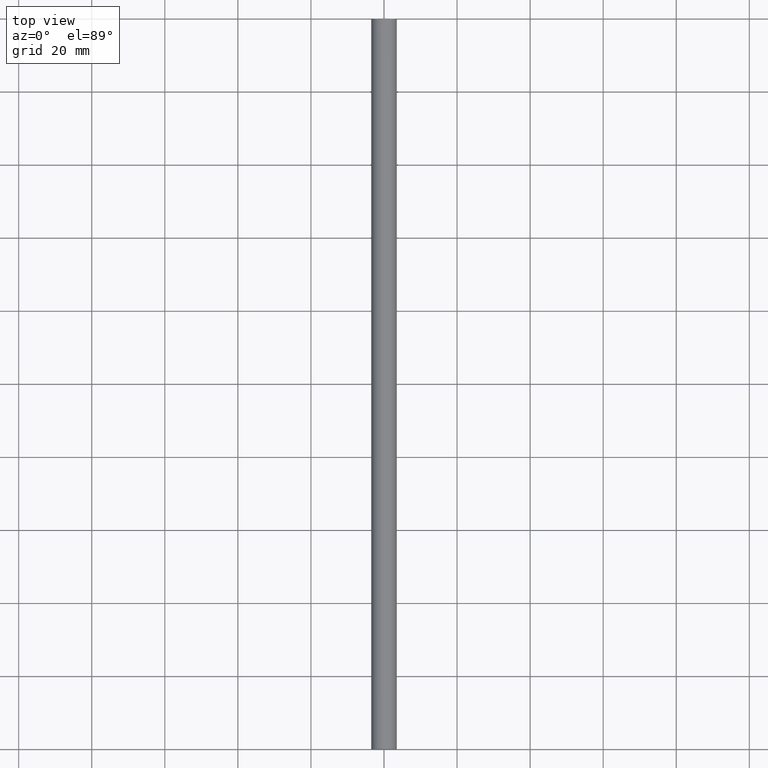
[diagram: clean part render]
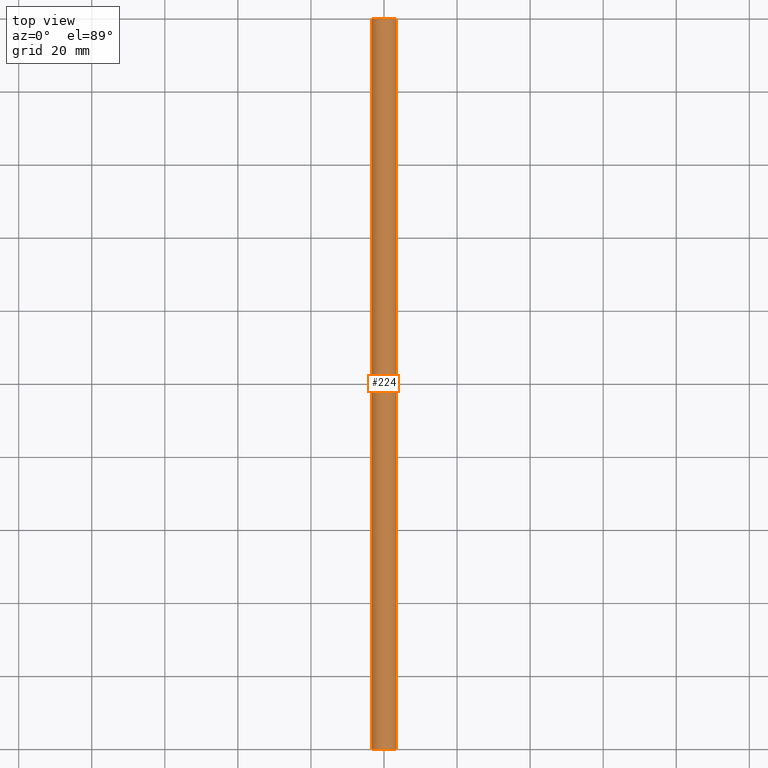
[diagram: same view with one face highlighted and labeled with its STEP entity id]
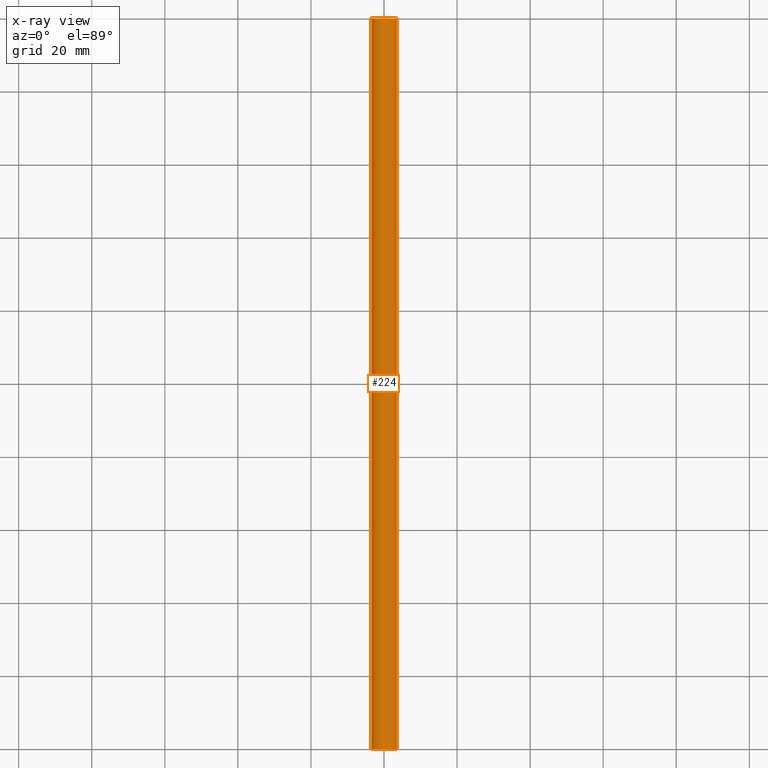
[diagram: x-ray of the same camera — body ghosted, the highlighted face saturated]
A machine part, top view. The second image highlights one B-rep face of the part: STEP entity #224.
The next image is the same camera in x-ray: the body ghosted, the highlighted face saturated — about 0% of this face is hidden behind the body in this view.
In plain terms, the highlighted cylindrical surface (edge-blend (fillet) strip) has radius 3.5 mm, axis along (0, -1, 0).
Its self-contained STEP definition (entity closure, byte-faithful):
#2 = CARTESIAN_POINT ( 'NONE',  ( 0.0000000000000000000, 1000.000000000000000, -0.5000000000000000000 ) ) ;
#6 = EDGE_CURVE ( 'NONE', #213, #72, #189, .T. ) ;
#19 = DIRECTION ( 'NONE',  ( 0.0000000000000000000, 0.0000000000000000000, 1.000000000000000000 ) ) ;
#22 = EDGE_CURVE ( 'NONE', #201, #213, #32, .T. ) ;
#25 = LINE ( 'NONE', #205, #30 ) ;
#26 = CARTESIAN_POINT ( 'NONE',  ( -3.500000000000000000, 0.0000000000000000000, -0.5000000000000000000 ) ) ;
#30 = VECTOR ( 'NONE', #152, 1000.000000000000000 ) ;
#32 = CIRCLE ( 'NONE', #71, 3.500000000000000000 ) ;
#33 = DIRECTION ( 'NONE',  ( -0.0000000000000000000, -1.000000000000000000, -0.0000000000000000000 ) ) ;
#52 = VERTEX_POINT ( 'NONE', #94 ) ;
#59 = DIRECTION ( 'NONE',  ( 0.0000000000000000000, 0.0000000000000000000, 1.000000000000000000 ) ) ;
#62 = ORIENTED_EDGE ( 'NONE', *, *, #120, .F. ) ;
#69 = EDGE_LOOP ( 'NONE', ( #176, #62, #101, #115 ) ) ;
#70 = CARTESIAN_POINT ( 'NONE',  ( 3.500000000000000000, 200.0000000000000000, -0.5000000000000000000 ) ) ;
#71 = AXIS2_PLACEMENT_3D ( 'NONE', #83, #177, #19 ) ;
#72 = VERTEX_POINT ( 'NONE', #26 ) ;
#76 = CYLINDRICAL_SURFACE ( 'NONE', #95, 3.500000000000000000 ) ;
#83 = CARTESIAN_POINT ( 'NONE',  ( 0.0000000000000000000, 200.0000000000000000, -0.5000000000000000000 ) ) ;
#94 = CARTESIAN_POINT ( 'NONE',  ( 3.500000000000000000, 0.0000000000000000000, -0.5000000000000000000 ) ) ;
#95 = AXIS2_PLACEMENT_3D ( 'NONE', #2, #174, #161 ) ;
#101 = ORIENTED_EDGE ( 'NONE', *, *, #22, .T. ) ;
#115 = ORIENTED_EDGE ( 'NONE', *, *, #6, .T. ) ;
#120 = EDGE_CURVE ( 'NONE', #201, #52, #25, .T. ) ;
#122 = CIRCLE ( 'NONE', #127, 3.500000000000000000 ) ;
#126 = VECTOR ( 'NONE', #158, 1000.000000000000000 ) ;
#127 = AXIS2_PLACEMENT_3D ( 'NONE', #168, #33, #59 ) ;
#152 = DIRECTION ( 'NONE',  ( 0.0000000000000000000, -1.000000000000000000, 0.0000000000000000000 ) ) ;
#158 = DIRECTION ( 'NONE',  ( 0.0000000000000000000, -1.000000000000000000, 0.0000000000000000000 ) ) ;
#161 = DIRECTION ( 'NONE',  ( 0.0000000000000000000, 0.0000000000000000000, -1.000000000000000000 ) ) ;
#168 = CARTESIAN_POINT ( 'NONE',  ( 0.0000000000000000000, 0.0000000000000000000, -0.5000000000000000000 ) ) ;
#172 = CARTESIAN_POINT ( 'NONE',  ( -3.500000000000000000, 1000.000000000000000, -0.5000000000000000000 ) ) ;
#174 = DIRECTION ( 'NONE',  ( 0.0000000000000000000, -1.000000000000000000, 0.0000000000000000000 ) ) ;
#176 = ORIENTED_EDGE ( 'NONE', *, *, #240, .F. ) ;
#177 = DIRECTION ( 'NONE',  ( -0.0000000000000000000, -1.000000000000000000, -0.0000000000000000000 ) ) ;
#189 = LINE ( 'NONE', #172, #126 ) ;
#198 = FACE_OUTER_BOUND ( 'NONE', #69, .T. ) ;
#201 = VERTEX_POINT ( 'NONE', #70 ) ;
#202 = CARTESIAN_POINT ( 'NONE',  ( -3.500000000000000000, 200.0000000000000000, -0.5000000000000000000 ) ) ;
#205 = CARTESIAN_POINT ( 'NONE',  ( 3.500000000000000000, 1000.000000000000000, -0.5000000000000000000 ) ) ;
#213 = VERTEX_POINT ( 'NONE', #202 ) ;
#224 = ADVANCED_FACE ( 'NONE', ( #198 ), #76, .T. ) ;
#240 = EDGE_CURVE ( 'NONE', #52, #72, #122, .T. ) ;